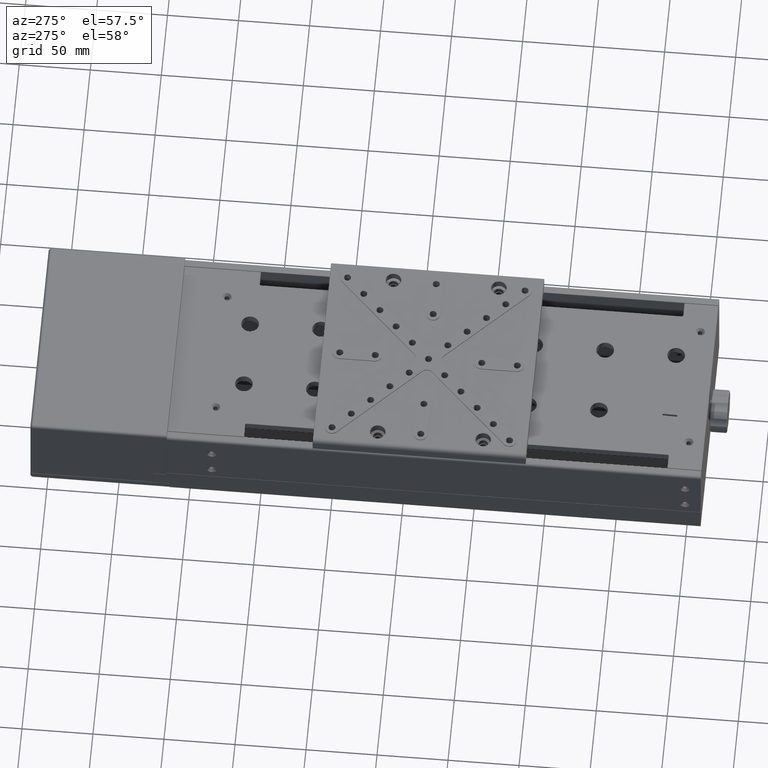
[diagram: clean part render]
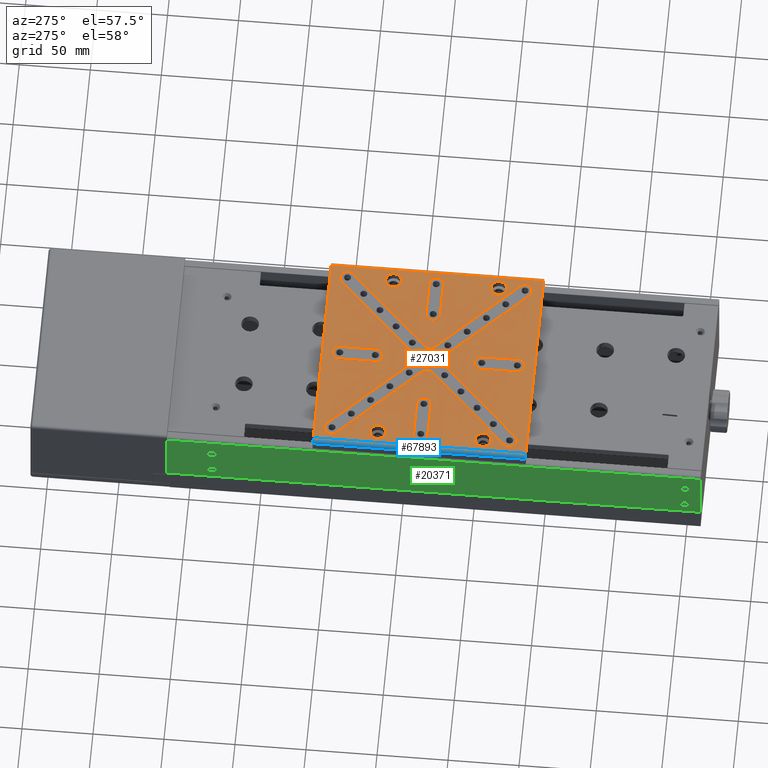
[diagram: same view with three faces highlighted in distinct colors, each labeled with its STEP entity id]
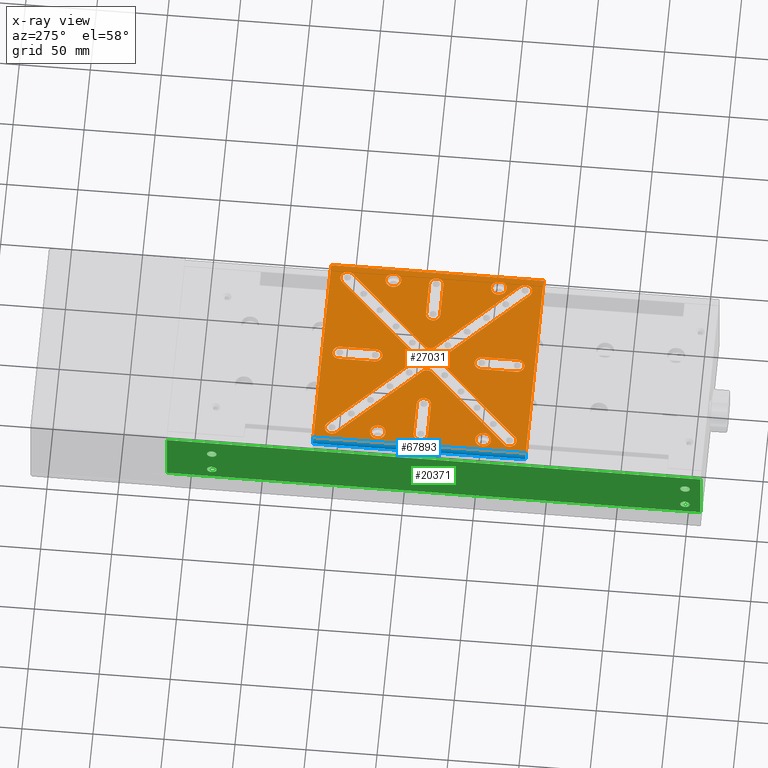
[diagram: x-ray of the same camera — body ghosted, the three highlighted faces saturated]
A machine part, auxiliary view with three faces highlighted in distinct colors.
The next image is the same camera in x-ray (body ghosted, the three faces saturated) — at least one of them is partly hidden behind the body in this view.
Their STEP definitions:

[orange] entity #27031 — the highlighted planar face has unit normal (0, -0, 1).
#61 = AXIS2_PLACEMENT_3D ( 'NONE', #50183, #50579, #26851 ) ;
#140 = VERTEX_POINT ( 'NONE', #46376 ) ;
#239 = LINE ( 'NONE', #42867, #42869 ) ;
#280 = CARTESIAN_POINT ( 'NONE',  ( -59.97883058508269727, 91.74845258666289283, 51.54665025355550512 ) ) ;
#297 = EDGE_CURVE ( 'NONE', #43103, #54788, #58184, .T. ) ;
#422 = CARTESIAN_POINT ( 'NONE',  ( -145.5854323028810029, 93.21291868073019771, 51.54665025355550512 ) ) ;
#516 = DIRECTION ( 'NONE',  ( 8.668995986095240018E-19, 0.000000000000000000, 1.000000000000000000 ) ) ;
#542 = DIRECTION ( 'NONE',  ( 0.000000000000000000, 1.000000000000000000, 0.000000000000000000 ) ) ;
#576 = VERTEX_POINT ( 'NONE', #47080 ) ;
#586 = CARTESIAN_POINT ( 'NONE',  ( -7.285432302880869848, 123.9129186807300158, 51.54665025355550512 ) ) ;
#605 = DIRECTION ( 'NONE',  ( 3.469446951953611231E-16, 1.000000000000000000, 0.000000000000000000 ) ) ;
#634 = CIRCLE ( 'NONE', #22433, 5.000000000000004441 ) ;
#962 = VERTEX_POINT ( 'NONE', #30398 ) ;
#1108 = AXIS2_PLACEMENT_3D ( 'NONE', #77739, #41095, #53992 ) ;
#1182 = CIRCLE ( 'NONE', #46109, 5.500000000000005329 ) ;
#1183 = CARTESIAN_POINT ( 'NONE',  ( -70.58543230288080395, 125.7129186807300130, 51.54665025355550512 ) ) ;
#1240 = ORIENTED_EDGE ( 'NONE', *, *, #20533, .F. ) ;
#2004 = AXIS2_PLACEMENT_3D ( 'NONE', #62480, #7345, #25850 ) ;
#2636 = CARTESIAN_POINT ( 'NONE',  ( -136.6209662088135985, 147.1773847747973889, 51.54665025355550512 ) ) ;
#2711 = DIRECTION ( 'NONE',  ( 8.668995986095240018E-19, 0.000000000000000000, 1.000000000000000000 ) ) ;
#3069 = AXIS2_PLACEMENT_3D ( 'NONE', #76631, #3423, #46419 ) ;
#3336 = ORIENTED_EDGE ( 'NONE', *, *, #15711, .T. ) ;
#3423 = DIRECTION ( 'NONE',  ( 8.668995986095240018E-19, 0.000000000000000000, 1.000000000000000000 ) ) ;
#3738 = DIRECTION ( 'NONE',  ( -8.668995986095240018E-19, 2.734238336405115197E-34, -1.000000000000000000 ) ) ;
#3763 = CARTESIAN_POINT ( 'NONE',  ( -65.58543230288080395, 125.7129186807300130, 51.54665025355550512 ) ) ;
#3880 = DIRECTION ( 'NONE',  ( 0.000000000000000000, 1.000000000000000000, 0.000000000000000000 ) ) ;
#3905 = ORIENTED_EDGE ( 'NONE', *, *, #5218, .T. ) ;
#3918 = VECTOR ( 'NONE', #42736, 1000.000000000000000 ) ;
#4113 = CIRCLE ( 'NONE', #46468, 5.000000000000004441 ) ;
#4141 = ORIENTED_EDGE ( 'NONE', *, *, #62560, .T. ) ;
#4306 = VECTOR ( 'NONE', #15430, 1000.000000000000114 ) ;
#4322 = DIRECTION ( 'NONE',  ( 8.668995986095240018E-19, 0.000000000000000000, 1.000000000000000000 ) ) ;
#4357 = DIRECTION ( 'NONE',  ( 3.469446951953613696E-16, 1.000000000000000000, 0.000000000000000000 ) ) ;
#4607 = CARTESIAN_POINT ( 'NONE',  ( -65.58543230288090342, 13.21291868073011955, 51.54665025355550512 ) ) ;
#4707 = ORIENTED_EDGE ( 'NONE', *, *, #8505, .T. ) ;
#5095 = CIRCLE ( 'NONE', #42336, 5.000000000000004441 ) ;
#5178 = AXIS2_PLACEMENT_3D ( 'NONE', #20017, #2711, #7554 ) ;
#5218 = EDGE_CURVE ( 'NONE', #43180, #74961, #30052, .T. ) ;
#5371 = LINE ( 'NONE', #17013, #63692 ) ;
#5651 = CARTESIAN_POINT ( 'NONE',  ( -65.58543230288090342, 50.71291868073009823, 51.54665025355550512 ) ) ;
#5653 = AXIS2_PLACEMENT_3D ( 'NONE', #10733, #53405, #54605 ) ;
#5794 = AXIS2_PLACEMENT_3D ( 'NONE', #65109, #72346, #73155 ) ;
#6085 = ORIENTED_EDGE ( 'NONE', *, *, #34741, .T. ) ;
#6106 = VERTEX_POINT ( 'NONE', #76032 ) ;
#6220 = DIRECTION ( 'NONE',  ( 8.668995986095240018E-19, -3.007662170045604907E-34, 1.000000000000000000 ) ) ;
#6334 = VERTEX_POINT ( 'NONE', #13886 ) ;
#6391 = ORIENTED_EDGE ( 'NONE', *, *, #39156, .T. ) ;
#7157 = FACE_OUTER_BOUND ( 'NONE', #9487, .T. ) ;
#7345 = DIRECTION ( 'NONE',  ( -8.668995986095240018E-19, 2.734238336405115197E-34, -1.000000000000000000 ) ) ;
#7402 = CARTESIAN_POINT ( 'NONE',  ( -142.0498983969482083, 9.677384774797499034, 51.54665025355550512 ) ) ;
#7554 = DIRECTION ( 'NONE',  ( 0.000000000000000000, 1.000000000000000000, 0.000000000000000000 ) ) ;
#7760 = VERTEX_POINT ( 'NONE', #28903 ) ;
#8085 = VECTOR ( 'NONE', #9475, 1000.000000000000000 ) ;
#8171 = EDGE_LOOP ( 'NONE', ( #9034, #47365, #49603, #50100 ) ) ;
#8225 = DIRECTION ( 'NONE',  ( 8.668995986095240018E-19, 0.000000000000000000, 1.000000000000000000 ) ) ;
#8270 = VERTEX_POINT ( 'NONE', #40852 ) ;
#8343 = DIRECTION ( 'NONE',  ( 0.000000000000000000, 1.000000000000000000, 0.000000000000000000 ) ) ;
#8363 = ORIENTED_EDGE ( 'NONE', *, *, #30836, .F. ) ;
#8378 = EDGE_CURVE ( 'NONE', #7760, #43180, #36429, .T. ) ;
#8406 = VECTOR ( 'NONE', #64147, 1000.000000000000114 ) ;
#8429 = DIRECTION ( 'NONE',  ( 8.668995986095240018E-19, 0.000000000000000000, 1.000000000000000000 ) ) ;
#8505 = EDGE_CURVE ( 'NONE', #62380, #74159, #14243, .T. ) ;
#8525 = ORIENTED_EDGE ( 'NONE', *, *, #27009, .T. ) ;
#8603 = CARTESIAN_POINT ( 'NONE',  ( -142.5854323028808039, 163.0129186807299959, 51.54665025355550512 ) ) ;
#9034 = ORIENTED_EDGE ( 'NONE', *, *, #67549, .F. ) ;
#9173 = DIRECTION ( 'NONE',  ( 8.668995986095240018E-19, -3.007662170045634842E-34, 1.000000000000000000 ) ) ;
#9203 = CARTESIAN_POINT ( 'NONE',  ( -70.58543230288080395, 50.71291868073009823, 51.54665025355550512 ) ) ;
#9475 = DIRECTION ( 'NONE',  ( 3.885780586188049864E-16, 1.000000000000000000, 1.362391624965246078E-20 ) ) ;
#9487 = EDGE_LOOP ( 'NONE', ( #6085, #79422, #44446, #76683 ) ) ;
#9602 = CIRCLE ( 'NONE', #5794, 5.000000000000004441 ) ;
#9632 = CARTESIAN_POINT ( 'NONE',  ( -129.5498983969481799, 22.17738477479750259, 51.54665025355550512 ) ) ;
#9775 = VECTOR ( 'NONE', #49296, 1000.000000000000114 ) ;
#10207 = DIRECTION ( 'NONE',  ( 3.885780586188049864E-16, 1.000000000000000000, 1.362391624965246078E-20 ) ) ;
#10733 = CARTESIAN_POINT ( 'NONE',  ( -133.8854323028808153, 118.4129186807302005, 51.54665025355550512 ) ) ;
#10873 = VECTOR ( 'NONE', #66008, 1000.000000000000114 ) ;
#11125 = ORIENTED_EDGE ( 'NONE', *, *, #12563, .T. ) ;
#11132 = CARTESIAN_POINT ( 'NONE',  ( -108.0854323028808182, 88.21291868073009823, 51.54665025355550512 ) ) ;
#11253 = ORIENTED_EDGE ( 'NONE', *, *, #32360, .F. ) ;
#11405 = DIRECTION ( 'NONE',  ( -8.668995986095240018E-19, 0.000000000000000000, -1.000000000000000000 ) ) ;
#11671 = CARTESIAN_POINT ( 'NONE',  ( -74.12096620881359854, 84.67738477479740311, 51.54665025355550512 ) ) ;
#12440 = EDGE_CURVE ( 'NONE', #962, #13564, #49306, .T. ) ;
#12563 = EDGE_CURVE ( 'NONE', #24933, #56872, #76219, .T. ) ;
#12588 = AXIS2_PLACEMENT_3D ( 'NONE', #53911, #36186, #12833 ) ;
#12833 = DIRECTION ( 'NONE',  ( 3.469446951953611231E-16, 1.000000000000000000, 0.000000000000000000 ) ) ;
#13008 = LINE ( 'NONE', #24327, #72084 ) ;
#13180 = AXIS2_PLACEMENT_3D ( 'NONE', #55235, #72544, #17406 ) ;
#13296 = CARTESIAN_POINT ( 'NONE',  ( -142.5854323028810029, 13.41291868073016147, 51.54665025355550512 ) ) ;
#13562 = FACE_BOUND ( 'NONE', #55797, .T. ) ;
#13564 = VERTEX_POINT ( 'NONE', #34550 ) ;
#13588 = VECTOR ( 'NONE', #17928, 1000.000000000000000 ) ;
#13614 = VECTOR ( 'NONE', #54948, 1000.000000000000114 ) ;
#13750 = ORIENTED_EDGE ( 'NONE', *, *, #58264, .F. ) ;
#13861 = DIRECTION ( 'NONE',  ( 0.000000000000000000, 1.000000000000000000, 0.000000000000000000 ) ) ;
#13886 = CARTESIAN_POINT ( 'NONE',  ( -65.58543230288080395, 150.7129186807300130, 51.54665025355550512 ) ) ;
#13997 = EDGE_CURVE ( 'NONE', #66401, #73585, #33093, .T. ) ;
#14243 = LINE ( 'NONE', #74246, #9775 ) ;
#14257 = CARTESIAN_POINT ( 'NONE',  ( -149.1209662088135985, 16.74845258666294967, 51.54665025355550512 ) ) ;
#14350 = FACE_BOUND ( 'NONE', #65892, .T. ) ;
#14450 = VERTEX_POINT ( 'NONE', #22067 ) ;
#14511 = CARTESIAN_POINT ( 'NONE',  ( -75.58543230288081816, 125.7129186807300130, 51.54665025355550512 ) ) ;
#14910 = DIRECTION ( 'NONE',  ( 0.000000000000000000, 1.000000000000000000, 0.000000000000000000 ) ) ;
#15283 = EDGE_CURVE ( 'NONE', #54788, #43103, #1182, .T. ) ;
#15430 = DIRECTION ( 'NONE',  ( -0.7071067811865474617, 0.7071067811865474617, 6.226241483511374579E-19 ) ) ;
#15599 = CARTESIAN_POINT ( 'NONE',  ( -8.085432302880951383, 25.71291868073019771, 51.54665025355550512 ) ) ;
#15662 = LINE ( 'NONE', #7402, #19766 ) ;
#15680 = EDGE_CURVE ( 'NONE', #6106, #21140, #26903, .T. ) ;
#15711 = EDGE_CURVE ( 'NONE', #65237, #44100, #5095, .T. ) ;
#16238 = DIRECTION ( 'NONE',  ( 0.000000000000000000, 1.000000000000000000, 0.000000000000000000 ) ) ;
#16368 = AXIS2_PLACEMENT_3D ( 'NONE', #25873, #38332, #56852 ) ;
#16581 = VERTEX_POINT ( 'NONE', #78905 ) ;
#16582 = CARTESIAN_POINT ( 'NONE',  ( -70.58543230288090342, 150.7129186807300130, 51.54665025355550512 ) ) ;
#16589 = CARTESIAN_POINT ( 'NONE',  ( -145.5854323028810029, 83.21291868073011244, 51.54665025355550512 ) ) ;
#16724 = VECTOR ( 'NONE', #40935, 1000.000000000000000 ) ;
#17013 = CARTESIAN_POINT ( 'NONE',  ( -65.58543230288080395, 13.21291868073011955, 51.54665025355550512 ) ) ;
#17123 = AXIS2_PLACEMENT_3D ( 'NONE', #40415, #64561, #58149 ) ;
#17206 = DIRECTION ( 'NONE',  ( 3.154042683594191669E-16, 1.000000000000000000, 0.000000000000000000 ) ) ;
#17271 = EDGE_CURVE ( 'NONE', #962, #32060, #4113, .T. ) ;
#17406 = DIRECTION ( 'NONE',  ( 3.154042683594191669E-16, 1.000000000000000000, 0.000000000000000000 ) ) ;
#17643 = DIRECTION ( 'NONE',  ( 0.000000000000000000, 1.000000000000000000, 0.000000000000000000 ) ) ;
#17928 = DIRECTION ( 'NONE',  ( 1.000000000000000000, -2.661133787040694931E-16, -8.668995986095240018E-19 ) ) ;
#18147 = DIRECTION ( 'NONE',  ( 3.885780586188049864E-16, 1.000000000000000000, 1.362391624965246078E-20 ) ) ;
#18210 = CARTESIAN_POINT ( 'NONE',  ( -142.5854323028810029, 13.21291868073016040, 51.54665025355550512 ) ) ;
#18287 = CARTESIAN_POINT ( 'NONE',  ( -75.58543230288090342, 25.71291868073024744, 51.54665025355550512 ) ) ;
#18455 = VERTEX_POINT ( 'NONE', #65402 ) ;
#18707 = CIRCLE ( 'NONE', #2004, 5.499999999999998224 ) ;
#18746 = DIRECTION ( 'NONE',  ( 0.7071067811865480168, 0.7071067811865470176, -6.033570212182439695E-19 ) ) ;
#18762 = VECTOR ( 'NONE', #24972, 1000.000000000000000 ) ;
#18808 = EDGE_CURVE ( 'NONE', #73585, #63993, #74916, .T. ) ;
#18880 = CARTESIAN_POINT ( 'NONE',  ( -75.58543230288090342, 50.71291868073009823, 51.54665025355550512 ) ) ;
#19193 = EDGE_CURVE ( 'NONE', #44085, #32784, #22309, .T. ) ;
#19220 = FACE_BOUND ( 'NONE', #66971, .T. ) ;
#19766 = VECTOR ( 'NONE', #56488, 1000.000000000000000 ) ;
#19825 = CIRCLE ( 'NONE', #5653, 5.500000000000005329 ) ;
#20017 = CARTESIAN_POINT ( 'NONE',  ( -70.58543230288090342, 74.07078305699920406, 51.54665025355550512 ) ) ;
#20024 = CARTESIAN_POINT ( 'NONE',  ( -133.0854323028810029, 25.71291868073024744, 51.54665025355550512 ) ) ;
#20068 = DIRECTION ( 'NONE',  ( 0.000000000000000000, 1.000000000000000000, 0.000000000000000000 ) ) ;
#20115 = VERTEX_POINT ( 'NONE', #18287 ) ;
#20172 = EDGE_CURVE ( 'NONE', #140, #46082, #36508, .T. ) ;
#20307 = DIRECTION ( 'NONE',  ( 0.000000000000000000, 1.000000000000000000, 0.000000000000000000 ) ) ;
#20413 = FACE_BOUND ( 'NONE', #74839, .T. ) ;
#20418 = DIRECTION ( 'NONE',  ( 8.668995986095240018E-19, 0.000000000000000000, 1.000000000000000000 ) ) ;
#20533 = EDGE_CURVE ( 'NONE', #67633, #8270, #78978, .T. ) ;
#21074 = DIRECTION ( 'NONE',  ( 1.000000000000000000, -3.885780586188049864E-16, -8.668995986095240018E-19 ) ) ;
#21140 = VERTEX_POINT ( 'NONE', #18880 ) ;
#21977 = CARTESIAN_POINT ( 'NONE',  ( 1.414567697119174072, 163.0129186807299959, 51.54665025355550512 ) ) ;
#22048 = VERTEX_POINT ( 'NONE', #14511 ) ;
#22067 = CARTESIAN_POINT ( 'NONE',  ( -133.8854323028809858, 49.71291868073010534, 51.54665025355550512 ) ) ;
#22309 = CIRCLE ( 'NONE', #55758, 5.499999999999998224 ) ;
#22433 = AXIS2_PLACEMENT_3D ( 'NONE', #49667, #75392, #605 ) ;
#22463 = CARTESIAN_POINT ( 'NONE',  ( -142.5854323028808039, 163.0129186807299959, 51.54665025355550512 ) ) ;
#22778 = EDGE_LOOP ( 'NONE', ( #69645, #27138 ) ) ;
#23475 = DIRECTION ( 'NONE',  ( 8.668995986095240018E-19, 0.000000000000000000, 1.000000000000000000 ) ) ;
#24212 = LINE ( 'NONE', #79331, #67201 ) ;
#24303 = LINE ( 'NONE', #4607, #26532 ) ;
#24327 = CARTESIAN_POINT ( 'NONE',  ( -75.58543230288090342, 13.21291868073011955, 51.54665025355550512 ) ) ;
#24886 = CARTESIAN_POINT ( 'NONE',  ( -70.58543230288090342, 102.3550543044609924, 51.54665025355550512 ) ) ;
#24933 = VERTEX_POINT ( 'NONE', #37103 ) ;
#24972 = DIRECTION ( 'NONE',  ( 1.000000000000000000, -3.885780586188049864E-16, -8.668995986095240018E-19 ) ) ;
#25509 = CIRCLE ( 'NONE', #1108, 5.499999999999998224 ) ;
#25517 = AXIS2_PLACEMENT_3D ( 'NONE', #24886, #79219, #17643 ) ;
#25559 = DIRECTION ( 'NONE',  ( 0.000000000000000000, 1.000000000000000000, 0.000000000000000000 ) ) ;
#25594 = CIRCLE ( 'NONE', #65427, 5.500000000000005329 ) ;
#25842 = CIRCLE ( 'NONE', #70791, 4.999999999999997335 ) ;
#25850 = DIRECTION ( 'NONE',  ( 3.154042683594195614E-16, 1.000000000000000000, 0.000000000000000000 ) ) ;
#25873 = CARTESIAN_POINT ( 'NONE',  ( -133.0854323028810029, 150.7129186807300130, 51.54665025355550512 ) ) ;
#26054 = FACE_BOUND ( 'NONE', #8171, .T. ) ;
#26219 = CARTESIAN_POINT ( 'NONE',  ( -133.8854323028808153, 118.4129186807302005, 51.54665025355550512 ) ) ;
#26462 = CARTESIAN_POINT ( 'NONE',  ( -133.8854323028808153, 123.9129186807300158, 51.54665025355550512 ) ) ;
#26532 = VECTOR ( 'NONE', #10207, 1000.000000000000000 ) ;
#26654 = CIRCLE ( 'NONE', #30498, 5.000000000000000888 ) ;
#26851 = DIRECTION ( 'NONE',  ( 1.000000000000000000, 0.000000000000000000, -8.668995986095240018E-19 ) ) ;
#26903 = CIRCLE ( 'NONE', #30758, 4.999999999999997335 ) ;
#26904 = DIRECTION ( 'NONE',  ( 8.668995986095240018E-19, 0.000000000000000000, 1.000000000000000000 ) ) ;
#26978 = EDGE_CURVE ( 'NONE', #16581, #66401, #32090, .T. ) ;
#27009 = EDGE_CURVE ( 'NONE', #74961, #46323, #50125, .T. ) ;
#27022 = CARTESIAN_POINT ( 'NONE',  ( -65.58543230288090342, 25.71291868073024744, 51.54665025355550512 ) ) ;
#27031 = ADVANCED_FACE ( 'NONE', ( #57033, #19220, #13562, #56643, #75528, #56253, #26054, #20413, #14350, #7157 ), #39289, .T. ) ;
#27138 = ORIENTED_EDGE ( 'NONE', *, *, #68345, .T. ) ;
#27585 = CARTESIAN_POINT ( 'NONE',  ( -129.5498983969481799, 154.2484525866630065, 51.54665025355550512 ) ) ;
#27894 = EDGE_CURVE ( 'NONE', #45705, #6106, #25842, .T. ) ;
#28071 = EDGE_CURVE ( 'NONE', #16581, #24933, #62783, .T. ) ;
#28672 = DIRECTION ( 'NONE',  ( 8.668995986095240018E-19, 0.000000000000000000, 1.000000000000000000 ) ) ;
#28903 = CARTESIAN_POINT ( 'NONE',  ( -11.62096620881365894, 22.17738477479744930, 51.54665025355550512 ) ) ;
#29103 = AXIS2_PLACEMENT_3D ( 'NONE', #11132, #4322, #48940 ) ;
#29430 = VERTEX_POINT ( 'NONE', #3763 ) ;
#29494 = CARTESIAN_POINT ( 'NONE',  ( -133.0854323028810029, 155.7129186807300130, 51.54665025355550512 ) ) ;
#29749 = AXIS2_PLACEMENT_3D ( 'NONE', #1183, #26904, #20068 ) ;
#29865 = CARTESIAN_POINT ( 'NONE',  ( -81.19203402067908826, 84.67738477479750259, 51.54665025355550512 ) ) ;
#30052 = CIRCLE ( 'NONE', #3069, 5.000000000000004441 ) ;
#30398 = CARTESIAN_POINT ( 'NONE',  ( -33.08543230288085368, 93.21291868073009823, 51.54665025355550512 ) ) ;
#30447 = AXIS2_PLACEMENT_3D ( 'NONE', #15599, #9173, #4357 ) ;
#30498 = AXIS2_PLACEMENT_3D ( 'NONE', #20024, #20418, #8343 ) ;
#30758 = AXIS2_PLACEMENT_3D ( 'NONE', #44822, #50076, #20307 ) ;
#30836 = EDGE_CURVE ( 'NONE', #20115, #45407, #79371, .T. ) ;
#31524 = ORIENTED_EDGE ( 'NONE', *, *, #28071, .T. ) ;
#31543 = DIRECTION ( 'NONE',  ( 3.469446951953611231E-16, 1.000000000000000000, 0.000000000000000000 ) ) ;
#31731 = CARTESIAN_POINT ( 'NONE',  ( -8.085432302880919408, 155.7129186807300130, 51.54665025355550512 ) ) ;
#31987 = DIRECTION ( 'NONE',  ( 8.668995986095240018E-19, 0.000000000000000000, 1.000000000000000000 ) ) ;
#32060 = VERTEX_POINT ( 'NONE', #42459 ) ;
#32090 = LINE ( 'NONE', #38899, #77126 ) ;
#32256 = EDGE_CURVE ( 'NONE', #6334, #67633, #47925, .T. ) ;
#32360 = EDGE_CURVE ( 'NONE', #58859, #44100, #64140, .T. ) ;
#32516 = ORIENTED_EDGE ( 'NONE', *, *, #62628, .F. ) ;
#32572 = ORIENTED_EDGE ( 'NONE', *, *, #15283, .T. ) ;
#32784 = VERTEX_POINT ( 'NONE', #39647 ) ;
#33093 = CIRCLE ( 'NONE', #16368, 5.000000000000004441 ) ;
#33135 = CARTESIAN_POINT ( 'NONE',  ( -145.5854323028810029, 83.21291868073011244, 51.54665025355550512 ) ) ;
#33157 = CARTESIAN_POINT ( 'NONE',  ( -67.04989839694809461, 91.74845258666289283, 51.54665025355550512 ) ) ;
#34204 = AXIS2_PLACEMENT_3D ( 'NONE', #65734, #11405, #16238 ) ;
#34265 = CIRCLE ( 'NONE', #30447, 5.000000000000000888 ) ;
#34550 = CARTESIAN_POINT ( 'NONE',  ( -8.085432302880919408, 93.21291868073009823, 51.54665025355550512 ) ) ;
#34741 = EDGE_CURVE ( 'NONE', #75535, #66021, #73346, .T. ) ;
#34809 = CARTESIAN_POINT ( 'NONE',  ( -11.62096620881365894, 154.2484525866630065, 51.54665025355550512 ) ) ;
#34865 = DIRECTION ( 'NONE',  ( 3.885780586188049864E-16, 1.000000000000000000, 1.362391624965246078E-20 ) ) ;
#35037 = VERTEX_POINT ( 'NONE', #58995 ) ;
#35655 = ORIENTED_EDGE ( 'NONE', *, *, #72420, .F. ) ;
#36186 = DIRECTION ( 'NONE',  ( 8.668995986095240018E-19, -3.007662170045619874E-34, 1.000000000000000000 ) ) ;
#36429 = LINE ( 'NONE', #66220, #13614 ) ;
#36508 = CIRCLE ( 'NONE', #45503, 5.000000000000004441 ) ;
#36834 = ORIENTED_EDGE ( 'NONE', *, *, #27894, .F. ) ;
#36926 = ORIENTED_EDGE ( 'NONE', *, *, #40077, .F. ) ;
#37103 = CARTESIAN_POINT ( 'NONE',  ( -67.04989839694819409, 98.81952039852839675, 51.54665025355550512 ) ) ;
#37464 = ORIENTED_EDGE ( 'NONE', *, *, #15680, .F. ) ;
#37915 = EDGE_CURVE ( 'NONE', #43188, #63993, #60769, .T. ) ;
#38273 = EDGE_CURVE ( 'NONE', #74159, #43188, #9602, .T. ) ;
#38332 = DIRECTION ( 'NONE',  ( 8.668995986095240018E-19, 0.000000000000000000, 1.000000000000000000 ) ) ;
#38882 = EDGE_CURVE ( 'NONE', #32784, #44085, #18707, .T. ) ;
#38899 = CARTESIAN_POINT ( 'NONE',  ( -67.04989839694809461, 91.74845258666289283, 51.54665025355550512 ) ) ;
#39156 = EDGE_CURVE ( 'NONE', #140, #18455, #78504, .T. ) ;
#39289 = PLANE ( 'NONE',  #61 ) ;
#39446 = DIRECTION ( 'NONE',  ( -8.668995986095240018E-19, 0.000000000000000000, -1.000000000000000000 ) ) ;
#39647 = CARTESIAN_POINT ( 'NONE',  ( -7.285432302880900934, 49.71291868073010534, 51.54665025355550512 ) ) ;
#40077 = EDGE_CURVE ( 'NONE', #65237, #67513, #239, .T. ) ;
#40415 = CARTESIAN_POINT ( 'NONE',  ( -133.0854323028810029, 150.7129186807300130, 51.54665025355550512 ) ) ;
#40852 = CARTESIAN_POINT ( 'NONE',  ( -75.58543230288081816, 150.7129186807300130, 51.54665025355550512 ) ) ;
#40935 = DIRECTION ( 'NONE',  ( -1.000000000000000000, 3.885780586188049864E-16, 8.668995986095240018E-19 ) ) ;
#41095 = DIRECTION ( 'NONE',  ( -8.668995986095240018E-19, 0.000000000000000000, -1.000000000000000000 ) ) ;
#41126 = DIRECTION ( 'NONE',  ( 1.000000000000000000, -3.885780586188049864E-16, -8.668995986095240018E-19 ) ) ;
#41214 = CARTESIAN_POINT ( 'NONE',  ( -133.0854323028810029, 88.21291868073009823, 51.54665025355550512 ) ) ;
#41948 = CIRCLE ( 'NONE', #29103, 5.000000000000004441 ) ;
#42166 = EDGE_CURVE ( 'NONE', #71392, #56872, #634, .T. ) ;
#42319 = CARTESIAN_POINT ( 'NONE',  ( -59.97883058508269727, 84.67738477479750259, 51.54665025355550512 ) ) ;
#42336 = AXIS2_PLACEMENT_3D ( 'NONE', #63353, #8225, #25559 ) ;
#42459 = CARTESIAN_POINT ( 'NONE',  ( -33.08543230288085368, 83.21291868073011244, 51.54665025355550512 ) ) ;
#42603 = CARTESIAN_POINT ( 'NONE',  ( -4.549898396948190538, 147.1773847747973889, 51.54665025355550512 ) ) ;
#42725 = VECTOR ( 'NONE', #21074, 1000.000000000000000 ) ;
#42736 = DIRECTION ( 'NONE',  ( -3.885780586188049864E-16, -1.000000000000000000, -1.362391624965246078E-20 ) ) ;
#42756 = CARTESIAN_POINT ( 'NONE',  ( -33.08543230288080395, 88.21291868073009823, 51.54665025355550512 ) ) ;
#42854 = CARTESIAN_POINT ( 'NONE',  ( -70.58543230288090342, 150.7129186807300130, 51.54665025355550512 ) ) ;
#42867 = CARTESIAN_POINT ( 'NONE',  ( -142.0498983969482083, 9.677384774797499034, 51.54665025355550512 ) ) ;
#42869 = VECTOR ( 'NONE', #18746, 1000.000000000000000 ) ;
#43103 = VERTEX_POINT ( 'NONE', #72717 ) ;
#43180 = VERTEX_POINT ( 'NONE', #65474 ) ;
#43188 = VERTEX_POINT ( 'NONE', #53409 ) ;
#44059 = ORIENTED_EDGE ( 'NONE', *, *, #13997, .F. ) ;
#44085 = VERTEX_POINT ( 'NONE', #48367 ) ;
#44100 = VERTEX_POINT ( 'NONE', #42319 ) ;
#44446 = ORIENTED_EDGE ( 'NONE', *, *, #74028, .T. ) ;
#44535 = DIRECTION ( 'NONE',  ( -0.7071067811865474617, 0.7071067811865474617, 6.226241483511374579E-19 ) ) ;
#44747 = ORIENTED_EDGE ( 'NONE', *, *, #57357, .F. ) ;
#44822 = CARTESIAN_POINT ( 'NONE',  ( -70.58543230288080395, 50.71291868073009823, 51.54665025355550512 ) ) ;
#45213 = ORIENTED_EDGE ( 'NONE', *, *, #26978, .F. ) ;
#45407 = VERTEX_POINT ( 'NONE', #27022 ) ;
#45503 = AXIS2_PLACEMENT_3D ( 'NONE', #41214, #66986, #72215 ) ;
#45596 = LINE ( 'NONE', #33135, #42725 ) ;
#45705 = VERTEX_POINT ( 'NONE', #5651 ) ;
#46034 = EDGE_CURVE ( 'NONE', #76348, #75535, #77581, .T. ) ;
#46082 = VERTEX_POINT ( 'NONE', #60660 ) ;
#46109 = AXIS2_PLACEMENT_3D ( 'NONE', #78390, #72339, #17206 ) ;
#46267 = ORIENTED_EDGE ( 'NONE', *, *, #70465, .T. ) ;
#46323 = VERTEX_POINT ( 'NONE', #58883 ) ;
#46376 = CARTESIAN_POINT ( 'NONE',  ( -133.0854323028810029, 93.21291868073019771, 51.54665025355550512 ) ) ;
#46419 = DIRECTION ( 'NONE',  ( 0.000000000000000000, 1.000000000000000000, 0.000000000000000000 ) ) ;
#46468 = AXIS2_PLACEMENT_3D ( 'NONE', #42756, #23475, #73366 ) ;
#46728 = AXIS2_PLACEMENT_3D ( 'NONE', #49243, #6220, #31543 ) ;
#47080 = CARTESIAN_POINT ( 'NONE',  ( 1.414567697119118117, 13.41291868073012061, 51.54665025355550512 ) ) ;
#47365 = ORIENTED_EDGE ( 'NONE', *, *, #68180, .F. ) ;
#47881 = ORIENTED_EDGE ( 'NONE', *, *, #8378, .T. ) ;
#47925 = CIRCLE ( 'NONE', #56980, 5.000000000000004441 ) ;
#47930 = ORIENTED_EDGE ( 'NONE', *, *, #64517, .T. ) ;
#47994 = DIRECTION ( 'NONE',  ( 3.885780586188049864E-16, 1.000000000000000000, 1.362391624965246078E-20 ) ) ;
#48006 = CIRCLE ( 'NONE', #46728, 5.000000000000004441 ) ;
#48367 = CARTESIAN_POINT ( 'NONE',  ( -7.285432302880900934, 38.71291868073010534, 51.54665025355550512 ) ) ;
#48940 = DIRECTION ( 'NONE',  ( 0.000000000000000000, 1.000000000000000000, 0.000000000000000000 ) ) ;
#49243 = CARTESIAN_POINT ( 'NONE',  ( -8.085432302880919408, 150.7129186807300130, 51.54665025355550512 ) ) ;
#49296 = DIRECTION ( 'NONE',  ( 0.7071067811865474617, 0.7071067811865474617, -6.033570212182434880E-19 ) ) ;
#49306 = LINE ( 'NONE', #73864, #67573 ) ;
#49603 = ORIENTED_EDGE ( 'NONE', *, *, #17271, .F. ) ;
#49667 = CARTESIAN_POINT ( 'NONE',  ( -8.085432302880919408, 150.7129186807300130, 51.54665025355550512 ) ) ;
#49735 = ORIENTED_EDGE ( 'NONE', *, *, #20172, .F. ) ;
#49794 = VERTEX_POINT ( 'NONE', #9632 ) ;
#50076 = DIRECTION ( 'NONE',  ( 8.668995986095240018E-19, 0.000000000000000000, 1.000000000000000000 ) ) ;
#50100 = ORIENTED_EDGE ( 'NONE', *, *, #12440, .T. ) ;
#50125 = CIRCLE ( 'NONE', #5178, 5.000000000000004441 ) ;
#50183 = CARTESIAN_POINT ( 'NONE',  ( -145.5854323028810029, 13.21291868073016040, 51.54665025355550512 ) ) ;
#50579 = DIRECTION ( 'NONE',  ( 8.668995986095240018E-19, -1.362391624965280082E-20, 1.000000000000000000 ) ) ;
#50778 = ORIENTED_EDGE ( 'NONE', *, *, #37915, .T. ) ;
#50960 = CARTESIAN_POINT ( 'NONE',  ( -70.58543230288090342, 79.07078305699920406, 51.54665025355550512 ) ) ;
#51053 = EDGE_CURVE ( 'NONE', #61892, #65997, #19825, .T. ) ;
#51448 = EDGE_LOOP ( 'NONE', ( #58572, #52596, #35655, #66446, #1240 ) ) ;
#52596 = ORIENTED_EDGE ( 'NONE', *, *, #76786, .F. ) ;
#53405 = DIRECTION ( 'NONE',  ( -8.668995986095240018E-19, 0.000000000000000000, -1.000000000000000000 ) ) ;
#53409 = CARTESIAN_POINT ( 'NONE',  ( -81.19203402067908826, 91.74845258666289283, 51.54665025355550512 ) ) ;
#53457 = CARTESIAN_POINT ( 'NONE',  ( -133.8854323028809858, 38.71291868073015507, 51.54665025355550512 ) ) ;
#53911 = CARTESIAN_POINT ( 'NONE',  ( -8.085432302880919408, 88.21291868073009823, 51.54665025355550512 ) ) ;
#53992 = DIRECTION ( 'NONE',  ( 0.000000000000000000, 1.000000000000000000, 0.000000000000000000 ) ) ;
#54094 = EDGE_CURVE ( 'NONE', #73609, #18455, #41948, .T. ) ;
#54202 = CARTESIAN_POINT ( 'NONE',  ( -4.549898396948219848, 29.24845258666295322, 51.54665025355550512 ) ) ;
#54413 = DIRECTION ( 'NONE',  ( 0.000000000000000000, 1.000000000000000000, 0.000000000000000000 ) ) ;
#54570 = AXIS2_PLACEMENT_3D ( 'NONE', #16582, #28672, #54413 ) ;
#54605 = DIRECTION ( 'NONE',  ( 0.000000000000000000, 1.000000000000000000, 0.000000000000000000 ) ) ;
#54788 = VERTEX_POINT ( 'NONE', #586 ) ;
#54948 = DIRECTION ( 'NONE',  ( -0.7071067811865474617, 0.7071067811865474617, 6.226241483511374579E-19 ) ) ;
#55105 = VECTOR ( 'NONE', #41126, 1000.000000000000000 ) ;
#55235 = CARTESIAN_POINT ( 'NONE',  ( -7.285432302880869848, 118.4129186807300016, 51.54665025355550512 ) ) ;
#55758 = AXIS2_PLACEMENT_3D ( 'NONE', #70900, #3738, #63699 ) ;
#55797 = EDGE_LOOP ( 'NONE', ( #36926, #3336, #11253, #71189, #47881, #3905, #8525, #13750, #67964, #4707, #65379, #50778, #78563, #44059, #45213, #31524, #11125, #60625, #64722 ) ) ;
#56253 = FACE_BOUND ( 'NONE', #79110, .T. ) ;
#56488 = DIRECTION ( 'NONE',  ( 0.7071067811865480168, 0.7071067811865470176, -6.033570212182439695E-19 ) ) ;
#56643 = FACE_BOUND ( 'NONE', #73806, .T. ) ;
#56852 = DIRECTION ( 'NONE',  ( 0.000000000000000000, 1.000000000000000000, 0.000000000000000000 ) ) ;
#56872 = VERTEX_POINT ( 'NONE', #34809 ) ;
#56980 = AXIS2_PLACEMENT_3D ( 'NONE', #42854, #31987, #13861 ) ;
#57033 = FACE_BOUND ( 'NONE', #22778, .T. ) ;
#57357 = EDGE_CURVE ( 'NONE', #46082, #73609, #45596, .T. ) ;
#57483 = CARTESIAN_POINT ( 'NONE',  ( -70.58543230288090342, 155.7129186807300130, 51.54665025355550512 ) ) ;
#58091 = EDGE_CURVE ( 'NONE', #67513, #71392, #48006, .T. ) ;
#58149 = DIRECTION ( 'NONE',  ( 0.000000000000000000, 1.000000000000000000, 0.000000000000000000 ) ) ;
#58184 = CIRCLE ( 'NONE', #13180, 5.500000000000005329 ) ;
#58264 = EDGE_CURVE ( 'NONE', #49794, #46323, #15662, .T. ) ;
#58572 = ORIENTED_EDGE ( 'NONE', *, *, #32256, .F. ) ;
#58643 = CIRCLE ( 'NONE', #34204, 5.499999999999998224 ) ;
#58783 = AXIS2_PLACEMENT_3D ( 'NONE', #74133, #516, #3880 ) ;
#58859 = VERTEX_POINT ( 'NONE', #54202 ) ;
#58883 = CARTESIAN_POINT ( 'NONE',  ( -74.12096620881359854, 77.60631696293201287, 51.54665025355550512 ) ) ;
#58995 = CARTESIAN_POINT ( 'NONE',  ( -8.085432302880919408, 83.21291868073011244, 51.54665025355550512 ) ) ;
#60625 = ORIENTED_EDGE ( 'NONE', *, *, #42166, .F. ) ;
#60660 = CARTESIAN_POINT ( 'NONE',  ( -133.0854323028810029, 83.21291868073011244, 51.54665025355550512 ) ) ;
#60769 = LINE ( 'NONE', #11671, #10873 ) ;
#60785 = ORIENTED_EDGE ( 'NONE', *, *, #38882, .T. ) ;
#61310 = EDGE_CURVE ( 'NONE', #7760, #58859, #34265, .T. ) ;
#61614 = VERTEX_POINT ( 'NONE', #53457 ) ;
#61892 = VERTEX_POINT ( 'NONE', #26462 ) ;
#61896 = EDGE_CURVE ( 'NONE', #62380, #49794, #26654, .T. ) ;
#62002 = CARTESIAN_POINT ( 'NONE',  ( -133.8854323028808153, 112.9129186807302005, 51.54665025355550512 ) ) ;
#62380 = VERTEX_POINT ( 'NONE', #69018 ) ;
#62480 = CARTESIAN_POINT ( 'NONE',  ( -7.285432302880900934, 44.21291868073009823, 51.54665025355550512 ) ) ;
#62560 = EDGE_CURVE ( 'NONE', #14450, #61614, #58643, .T. ) ;
#62628 = EDGE_CURVE ( 'NONE', #45407, #45705, #24303, .T. ) ;
#62783 = CIRCLE ( 'NONE', #25517, 5.000000000000004441 ) ;
#63353 = CARTESIAN_POINT ( 'NONE',  ( -56.44329667914999504, 88.21291868073019771, 51.54665025355550512 ) ) ;
#63692 = VECTOR ( 'NONE', #47994, 1000.000000000000000 ) ;
#63699 = DIRECTION ( 'NONE',  ( 3.154042683594195614E-16, 1.000000000000000000, 0.000000000000000000 ) ) ;
#63826 = CARTESIAN_POINT ( 'NONE',  ( 1.414567697119174072, 163.2129186807300130, 51.54665025355550512 ) ) ;
#63993 = VERTEX_POINT ( 'NONE', #2636 ) ;
#64140 = LINE ( 'NONE', #33157, #4306 ) ;
#64147 = DIRECTION ( 'NONE',  ( 0.7071067811865474617, 0.7071067811865474617, -6.033570212182434880E-19 ) ) ;
#64517 = EDGE_CURVE ( 'NONE', #61614, #14450, #25509, .T. ) ;
#64561 = DIRECTION ( 'NONE',  ( 8.668995986095240018E-19, 0.000000000000000000, 1.000000000000000000 ) ) ;
#64722 = ORIENTED_EDGE ( 'NONE', *, *, #58091, .F. ) ;
#65109 = CARTESIAN_POINT ( 'NONE',  ( -84.72756792661188285, 88.21291868073019771, 51.54665025355550512 ) ) ;
#65237 = VERTEX_POINT ( 'NONE', #280 ) ;
#65379 = ORIENTED_EDGE ( 'NONE', *, *, #38273, .T. ) ;
#65402 = CARTESIAN_POINT ( 'NONE',  ( -108.0854323028808182, 93.21291868073009823, 51.54665025355550512 ) ) ;
#65427 = AXIS2_PLACEMENT_3D ( 'NONE', #26219, #39446, #14910 ) ;
#65474 = CARTESIAN_POINT ( 'NONE',  ( -67.04989839694819409, 77.60631696293201287, 51.54665025355550512 ) ) ;
#65734 = CARTESIAN_POINT ( 'NONE',  ( -133.8854323028809858, 44.21291868073014797, 51.54665025355550512 ) ) ;
#65892 = EDGE_LOOP ( 'NONE', ( #32572, #74442 ) ) ;
#65997 = VERTEX_POINT ( 'NONE', #62002 ) ;
#66008 = DIRECTION ( 'NONE',  ( -0.7071067811865474617, 0.7071067811865474617, 6.226241483511374579E-19 ) ) ;
#66021 = VERTEX_POINT ( 'NONE', #13296 ) ;
#66220 = CARTESIAN_POINT ( 'NONE',  ( -74.12096620881359854, 84.67738477479740311, 51.54665025355550512 ) ) ;
#66401 = VERTEX_POINT ( 'NONE', #27585 ) ;
#66446 = ORIENTED_EDGE ( 'NONE', *, *, #77515, .T. ) ;
#66971 = EDGE_LOOP ( 'NONE', ( #4141, #47930 ) ) ;
#66986 = DIRECTION ( 'NONE',  ( 8.668995986095240018E-19, 0.000000000000000000, 1.000000000000000000 ) ) ;
#67201 = VECTOR ( 'NONE', #18147, 1000.000000000000000 ) ;
#67513 = VERTEX_POINT ( 'NONE', #42603 ) ;
#67549 = EDGE_CURVE ( 'NONE', #35037, #13564, #73032, .T. ) ;
#67573 = VECTOR ( 'NONE', #67831, 1000.000000000000000 ) ;
#67633 = VERTEX_POINT ( 'NONE', #57483 ) ;
#67818 = LINE ( 'NONE', #73060, #13588 ) ;
#67831 = DIRECTION ( 'NONE',  ( 1.000000000000000000, -3.885780586188049864E-16, -8.668995986095240018E-19 ) ) ;
#67964 = ORIENTED_EDGE ( 'NONE', *, *, #61896, .F. ) ;
#68180 = EDGE_CURVE ( 'NONE', #32060, #35037, #71723, .T. ) ;
#68345 = EDGE_CURVE ( 'NONE', #65997, #61892, #25594, .T. ) ;
#69018 = CARTESIAN_POINT ( 'NONE',  ( -136.6209662088135985, 29.24845258666299941, 51.54665025355550512 ) ) ;
#69601 = CIRCLE ( 'NONE', #29749, 5.000000000000004441 ) ;
#69645 = ORIENTED_EDGE ( 'NONE', *, *, #51053, .T. ) ;
#70465 = EDGE_CURVE ( 'NONE', #20115, #21140, #13008, .T. ) ;
#70791 = AXIS2_PLACEMENT_3D ( 'NONE', #9203, #8429, #542 ) ;
#70900 = CARTESIAN_POINT ( 'NONE',  ( -7.285432302880900934, 44.21291868073009823, 51.54665025355550512 ) ) ;
#71189 = ORIENTED_EDGE ( 'NONE', *, *, #61310, .F. ) ;
#71392 = VERTEX_POINT ( 'NONE', #31731 ) ;
#71723 = LINE ( 'NONE', #16589, #55105 ) ;
#72084 = VECTOR ( 'NONE', #34865, 1000.000000000000000 ) ;
#72215 = DIRECTION ( 'NONE',  ( 0.000000000000000000, 1.000000000000000000, 0.000000000000000000 ) ) ;
#72339 = DIRECTION ( 'NONE',  ( -8.668995986095240018E-19, 2.734238336405115197E-34, -1.000000000000000000 ) ) ;
#72346 = DIRECTION ( 'NONE',  ( 8.668995986095240018E-19, 0.000000000000000000, 1.000000000000000000 ) ) ;
#72420 = EDGE_CURVE ( 'NONE', #22048, #29430, #69601, .T. ) ;
#72544 = DIRECTION ( 'NONE',  ( -8.668995986095240018E-19, 2.734238336405115197E-34, -1.000000000000000000 ) ) ;
#72717 = CARTESIAN_POINT ( 'NONE',  ( -7.285432302880869848, 112.9129186807300016, 51.54665025355550512 ) ) ;
#73032 = CIRCLE ( 'NONE', #12588, 5.000000000000004441 ) ;
#73060 = CARTESIAN_POINT ( 'NONE',  ( 1.414567697119118117, 13.41291868073012061, 51.54665025355550512 ) ) ;
#73155 = DIRECTION ( 'NONE',  ( 0.000000000000000000, 1.000000000000000000, 0.000000000000000000 ) ) ;
#73346 = LINE ( 'NONE', #18210, #3918 ) ;
#73366 = DIRECTION ( 'NONE',  ( 0.000000000000000000, 1.000000000000000000, 0.000000000000000000 ) ) ;
#73585 = VERTEX_POINT ( 'NONE', #29494 ) ;
#73609 = VERTEX_POINT ( 'NONE', #78985 ) ;
#73806 = EDGE_LOOP ( 'NONE', ( #36834, #32516, #8363, #46267, #37464 ) ) ;
#73864 = CARTESIAN_POINT ( 'NONE',  ( -145.5854323028810029, 93.21291868073019771, 51.54665025355550512 ) ) ;
#74028 = EDGE_CURVE ( 'NONE', #576, #76348, #78569, .T. ) ;
#74133 = CARTESIAN_POINT ( 'NONE',  ( -70.58543230288090342, 25.71291868073024744, 51.54665025355550512 ) ) ;
#74159 = VERTEX_POINT ( 'NONE', #29865 ) ;
#74246 = CARTESIAN_POINT ( 'NONE',  ( -149.1209662088135985, 16.74845258666294967, 51.54665025355550512 ) ) ;
#74442 = ORIENTED_EDGE ( 'NONE', *, *, #297, .T. ) ;
#74839 = EDGE_LOOP ( 'NONE', ( #60785, #76375 ) ) ;
#74916 = CIRCLE ( 'NONE', #17123, 5.000000000000004441 ) ;
#74961 = VERTEX_POINT ( 'NONE', #50960 ) ;
#75140 = ORIENTED_EDGE ( 'NONE', *, *, #54094, .F. ) ;
#75392 = DIRECTION ( 'NONE',  ( 8.668995986095240018E-19, -3.007662170045604907E-34, 1.000000000000000000 ) ) ;
#75528 = FACE_BOUND ( 'NONE', #51448, .T. ) ;
#75535 = VERTEX_POINT ( 'NONE', #8603 ) ;
#76032 = CARTESIAN_POINT ( 'NONE',  ( -70.58543230288080395, 55.71291868073010534, 51.54665025355550512 ) ) ;
#76219 = LINE ( 'NONE', #14257, #8406 ) ;
#76348 = VERTEX_POINT ( 'NONE', #21977 ) ;
#76375 = ORIENTED_EDGE ( 'NONE', *, *, #19193, .T. ) ;
#76530 = EDGE_CURVE ( 'NONE', #66021, #576, #67818, .T. ) ;
#76631 = CARTESIAN_POINT ( 'NONE',  ( -70.58543230288090342, 74.07078305699920406, 51.54665025355550512 ) ) ;
#76683 = ORIENTED_EDGE ( 'NONE', *, *, #46034, .T. ) ;
#76786 = EDGE_CURVE ( 'NONE', #29430, #6334, #5371, .T. ) ;
#77126 = VECTOR ( 'NONE', #44535, 1000.000000000000114 ) ;
#77515 = EDGE_CURVE ( 'NONE', #22048, #8270, #24212, .T. ) ;
#77581 = LINE ( 'NONE', #22463, #16724 ) ;
#77739 = CARTESIAN_POINT ( 'NONE',  ( -133.8854323028809858, 44.21291868073014797, 51.54665025355550512 ) ) ;
#78390 = CARTESIAN_POINT ( 'NONE',  ( -7.285432302880869848, 118.4129186807300016, 51.54665025355550512 ) ) ;
#78504 = LINE ( 'NONE', #422, #18762 ) ;
#78563 = ORIENTED_EDGE ( 'NONE', *, *, #18808, .F. ) ;
#78569 = LINE ( 'NONE', #63826, #8085 ) ;
#78905 = CARTESIAN_POINT ( 'NONE',  ( -74.12096620881369802, 98.81952039852839675, 51.54665025355550512 ) ) ;
#78978 = CIRCLE ( 'NONE', #54570, 5.000000000000004441 ) ;
#78985 = CARTESIAN_POINT ( 'NONE',  ( -108.0854323028808182, 83.21291868073011244, 51.54665025355550512 ) ) ;
#79110 = EDGE_LOOP ( 'NONE', ( #75140, #44747, #49735, #6391 ) ) ;
#79219 = DIRECTION ( 'NONE',  ( 8.668995986095240018E-19, 0.000000000000000000, 1.000000000000000000 ) ) ;
#79331 = CARTESIAN_POINT ( 'NONE',  ( -75.58543230288081816, 13.21291868073011955, 51.54665025355550512 ) ) ;
#79371 = CIRCLE ( 'NONE', #58783, 5.000000000000000888 ) ;
#79422 = ORIENTED_EDGE ( 'NONE', *, *, #76530, .T. ) ;

[blue] entity #67893 — the highlighted cylindrical surface (edge-blend (fillet) strip) has radius 3 mm, axis along (0, 1, 0).
#1358 = ORIENTED_EDGE ( 'NONE', *, *, #42499, .T. ) ;
#2431 = LINE ( 'NONE', #51893, #54702 ) ;
#3918 = VECTOR ( 'NONE', #42736, 1000.000000000000000 ) ;
#4744 = DIRECTION ( 'NONE',  ( 0.000000000000000000, 0.000000000000000000, -1.000000000000000000 ) ) ;
#5962 = EDGE_CURVE ( 'NONE', #73405, #29526, #2431, .T. ) ;
#6262 = DIRECTION ( 'NONE',  ( -3.885780586188049864E-16, -1.000000000000000000, 0.000000000000000000 ) ) ;
#6975 = ORIENTED_EDGE ( 'NONE', *, *, #34311, .T. ) ;
#8603 = CARTESIAN_POINT ( 'NONE',  ( -142.5854323028808039, 163.0129186807299959, 51.54665025355550512 ) ) ;
#11150 = FACE_OUTER_BOUND ( 'NONE', #29416, .T. ) ;
#11266 = ORIENTED_EDGE ( 'NONE', *, *, #5962, .F. ) ;
#13296 = CARTESIAN_POINT ( 'NONE',  ( -142.5854323028810029, 13.41291868073016147, 51.54665025355550512 ) ) ;
#18210 = CARTESIAN_POINT ( 'NONE',  ( -142.5854323028810029, 13.21291868073016040, 51.54665025355550512 ) ) ;
#22006 = DIRECTION ( 'NONE',  ( 3.885780586188049864E-16, 1.000000000000000000, 0.000000000000000000 ) ) ;
#22841 = CARTESIAN_POINT ( 'NONE',  ( -142.5854323028810029, 13.21291868073016040, 48.54665025355549801 ) ) ;
#25774 = DIRECTION ( 'NONE',  ( 0.000000000000000000, 0.000000000000000000, -1.000000000000000000 ) ) ;
#27661 = CARTESIAN_POINT ( 'NONE',  ( -142.5854323028810029, 13.41291868073016147, 48.54665025355549801 ) ) ;
#28100 = AXIS2_PLACEMENT_3D ( 'NONE', #22841, #35702, #4744 ) ;
#29416 = EDGE_LOOP ( 'NONE', ( #11266, #1358, #53587, #6975 ) ) ;
#29526 = VERTEX_POINT ( 'NONE', #48778 ) ;
#30390 = DIRECTION ( 'NONE',  ( 0.000000000000000000, 0.000000000000000000, 1.000000000000000000 ) ) ;
#34311 = EDGE_CURVE ( 'NONE', #75535, #29526, #54457, .T. ) ;
#34741 = EDGE_CURVE ( 'NONE', #75535, #66021, #73346, .T. ) ;
#35702 = DIRECTION ( 'NONE',  ( 3.885780586188049864E-16, 1.000000000000000000, 0.000000000000000000 ) ) ;
#36027 = CARTESIAN_POINT ( 'NONE',  ( -142.5854323028808039, 163.0129186807299959, 48.54665025355549801 ) ) ;
#36613 = CIRCLE ( 'NONE', #63625, 3.000000000000002665 ) ;
#39810 = DIRECTION ( 'NONE',  ( 3.885780586188049864E-16, 1.000000000000000000, 1.362391624965246078E-20 ) ) ;
#42499 = EDGE_CURVE ( 'NONE', #73405, #66021, #36613, .T. ) ;
#42736 = DIRECTION ( 'NONE',  ( -3.885780586188049864E-16, -1.000000000000000000, -1.362391624965246078E-20 ) ) ;
#48778 = CARTESIAN_POINT ( 'NONE',  ( -145.5854323028808324, 163.0129186807299959, 48.54665025355549801 ) ) ;
#51893 = CARTESIAN_POINT ( 'NONE',  ( -145.5854323028808324, 163.2129186807300130, 48.54665025355549801 ) ) ;
#53587 = ORIENTED_EDGE ( 'NONE', *, *, #34741, .F. ) ;
#54457 = CIRCLE ( 'NONE', #67259, 3.000000000000002665 ) ;
#54702 = VECTOR ( 'NONE', #39810, 1000.000000000000000 ) ;
#63625 = AXIS2_PLACEMENT_3D ( 'NONE', #27661, #22006, #25774 ) ;
#66021 = VERTEX_POINT ( 'NONE', #13296 ) ;
#67259 = AXIS2_PLACEMENT_3D ( 'NONE', #36027, #6262, #30390 ) ;
#67893 = ADVANCED_FACE ( 'NONE', ( #11150 ), #79170, .T. ) ;
#70926 = CARTESIAN_POINT ( 'NONE',  ( -145.5854323028810029, 13.41291868073016147, 48.54665025355549801 ) ) ;
#73346 = LINE ( 'NONE', #18210, #3918 ) ;
#73405 = VERTEX_POINT ( 'NONE', #70926 ) ;
#75535 = VERTEX_POINT ( 'NONE', #8603 ) ;
#79170 = CYLINDRICAL_SURFACE ( 'NONE', #28100, 3.000000000000002665 ) ;

[green] entity #20371 — the highlighted planar face has unit normal (-1, -0, 0).
#640 = AXIS2_PLACEMENT_3D ( 'NONE', #47557, #72120, #6916 ) ;
#701 = CARTESIAN_POINT ( 'NONE',  ( -145.5854323028810029, -98.96880975817198589, 5.046650253555569954 ) ) ;
#1770 = EDGE_CURVE ( 'NONE', #24316, #78468, #31773, .T. ) ;
#1890 = CARTESIAN_POINT ( 'NONE',  ( -145.5854323028810029, 234.2311902418280170, 25.04665025355570052 ) ) ;
#1960 = EDGE_CURVE ( 'NONE', #52018, #24316, #16412, .T. ) ;
#1972 = LINE ( 'NONE', #7595, #23377 ) ;
#4063 = CARTESIAN_POINT ( 'NONE',  ( -145.5854323028810029, 266.0311902418279715, 39.04665025355569696 ) ) ;
#4654 = DIRECTION ( 'NONE',  ( 0.000000000000000000, 1.000000000000000000, 0.000000000000000000 ) ) ;
#4790 = AXIS2_PLACEMENT_3D ( 'NONE', #58465, #39925, #58855 ) ;
#6202 = ORIENTED_EDGE ( 'NONE', *, *, #44516, .F. ) ;
#6421 = DIRECTION ( 'NONE',  ( 5.546297892530918665E-17, -2.314189091845334991E-16, 1.000000000000000000 ) ) ;
#6724 = DIRECTION ( 'NONE',  ( 0.000000000000000000, 1.000000000000000000, 5.162867488026208163E-16 ) ) ;
#6916 = DIRECTION ( 'NONE',  ( 0.000000000000000000, 1.000000000000000000, 5.162867488026208163E-16 ) ) ;
#7060 = CIRCLE ( 'NONE', #72584, 3.360000000000002096 ) ;
#7414 = CARTESIAN_POINT ( 'NONE',  ( -145.5854323028810029, -109.9688097581720001, -3.953349746444434931 ) ) ;
#7595 = CARTESIAN_POINT ( 'NONE',  ( -145.5854323028810029, -109.7688097581719973, 39.04665025355554775 ) ) ;
#9067 = DIRECTION ( 'NONE',  ( 0.000000000000000000, 1.000000000000000000, 0.000000000000000000 ) ) ;
#11428 = CARTESIAN_POINT ( 'NONE',  ( -145.5854323028810029, -109.7688097581719973, -3.753349746444455182 ) ) ;
#13294 = AXIS2_PLACEMENT_3D ( 'NONE', #1890, #51729, #9067 ) ;
#13423 = FACE_BOUND ( 'NONE', #79307, .T. ) ;
#13806 = VECTOR ( 'NONE', #25352, 1000.000000000000000 ) ;
#15806 = CARTESIAN_POINT ( 'NONE',  ( -145.5854323028810029, 230.8711902418280033, 25.04665025355570052 ) ) ;
#16412 = LINE ( 'NONE', #33729, #38588 ) ;
#16585 = CARTESIAN_POINT ( 'NONE',  ( -145.5854323028810029, 234.2311902418280170, 25.04665025355570052 ) ) ;
#17016 = VERTEX_POINT ( 'NONE', #62176 ) ;
#17188 = AXIS2_PLACEMENT_3D ( 'NONE', #26235, #56037, #74132 ) ;
#17207 = CIRCLE ( 'NONE', #13294, 3.360000000000002096 ) ;
#18577 = ORIENTED_EDGE ( 'NONE', *, *, #43859, .F. ) ;
#18802 = ORIENTED_EDGE ( 'NONE', *, *, #1960, .T. ) ;
#20269 = PLANE ( 'NONE',  #31400 ) ;
#20371 = ADVANCED_FACE ( 'NONE', ( #68561, #13423, #74988, #37971, #50841 ), #20269, .T. ) ;
#20623 = EDGE_CURVE ( 'NONE', #35219, #43759, #55881, .T. ) ;
#21457 = CARTESIAN_POINT ( 'NONE',  ( -145.5854323028810029, 230.8711902418280033, 5.046650253555699628 ) ) ;
#23377 = VECTOR ( 'NONE', #6421, 1000.000000000000000 ) ;
#24316 = VERTEX_POINT ( 'NONE', #51521 ) ;
#25352 = DIRECTION ( 'NONE',  ( 2.352436789038279947E-18, -1.000000000000000000, -4.024558464266189994E-16 ) ) ;
#25539 = CIRCLE ( 'NONE', #4790, 3.360000000000002096 ) ;
#26235 = CARTESIAN_POINT ( 'NONE',  ( -145.5854323028810029, -98.96880975817209958, 25.04665025355554775 ) ) ;
#26263 = EDGE_LOOP ( 'NONE', ( #74937, #50310, #43942, #18802 ) ) ;
#28615 = VERTEX_POINT ( 'NONE', #15806 ) ;
#29676 = EDGE_LOOP ( 'NONE', ( #18577, #53180 ) ) ;
#30073 = CIRCLE ( 'NONE', #17188, 3.360000000000002096 ) ;
#31400 = AXIS2_PLACEMENT_3D ( 'NONE', #7414, #31946, #56500 ) ;
#31590 = CARTESIAN_POINT ( 'NONE',  ( -145.5854323028810029, 237.5911902418280022, 5.046650253555699628 ) ) ;
#31773 = LINE ( 'NONE', #63151, #13806 ) ;
#31946 = DIRECTION ( 'NONE',  ( -1.000000000000000000, -2.352436789038334643E-18, 1.386815334662471882E-16 ) ) ;
#32816 = EDGE_CURVE ( 'NONE', #28615, #17016, #17207, .T. ) ;
#32979 = ORIENTED_EDGE ( 'NONE', *, *, #20623, .F. ) ;
#33729 = CARTESIAN_POINT ( 'NONE',  ( -145.5854323028810029, 265.8311902418279828, -3.953349746444284829 ) ) ;
#34422 = AXIS2_PLACEMENT_3D ( 'NONE', #16585, #35503, #72123 ) ;
#35013 = LINE ( 'NONE', #4063, #51804 ) ;
#35219 = VERTEX_POINT ( 'NONE', #31590 ) ;
#35503 = DIRECTION ( 'NONE',  ( -1.000000000000000000, 0.000000000000000000, 1.386815334662471882E-16 ) ) ;
#35743 = AXIS2_PLACEMENT_3D ( 'NONE', #701, #61055, #6724 ) ;
#36742 = VERTEX_POINT ( 'NONE', #59563 ) ;
#36756 = ORIENTED_EDGE ( 'NONE', *, *, #45307, .F. ) ;
#37463 = CARTESIAN_POINT ( 'NONE',  ( -145.5854323028810029, 265.8311902418279828, 39.04665025355569696 ) ) ;
#37637 = EDGE_CURVE ( 'NONE', #38247, #36742, #30073, .T. ) ;
#37971 = FACE_BOUND ( 'NONE', #29676, .T. ) ;
#38247 = VERTEX_POINT ( 'NONE', #76797 ) ;
#38588 = VECTOR ( 'NONE', #71549, 1000.000000000000000 ) ;
#39925 = DIRECTION ( 'NONE',  ( -1.000000000000000000, -7.159943803225059611E-32, 1.386815334662471882E-16 ) ) ;
#41039 = DIRECTION ( 'NONE',  ( -2.352436789038279947E-18, 1.000000000000000000, 4.024558464266189994E-16 ) ) ;
#42113 = EDGE_CURVE ( 'NONE', #36742, #38247, #7060, .T. ) ;
#42728 = CARTESIAN_POINT ( 'NONE',  ( -145.5854323028810029, -98.96880975817198589, 5.046650253555569954 ) ) ;
#43759 = VERTEX_POINT ( 'NONE', #21457 ) ;
#43859 = EDGE_CURVE ( 'NONE', #17016, #28615, #66558, .T. ) ;
#43942 = ORIENTED_EDGE ( 'NONE', *, *, #57829, .T. ) ;
#44516 = EDGE_CURVE ( 'NONE', #46819, #57237, #70439, .T. ) ;
#44810 = CARTESIAN_POINT ( 'NONE',  ( -145.5854323028810029, -102.3288097581719853, 5.046650253555569954 ) ) ;
#45307 = EDGE_CURVE ( 'NONE', #57237, #46819, #64124, .T. ) ;
#45928 = VERTEX_POINT ( 'NONE', #65894 ) ;
#46819 = VERTEX_POINT ( 'NONE', #67329 ) ;
#47444 = AXIS2_PLACEMENT_3D ( 'NONE', #42728, #48779, #78984 ) ;
#47557 = CARTESIAN_POINT ( 'NONE',  ( -145.5854323028810029, 234.2311902418280170, 5.046650253555699628 ) ) ;
#48467 = DIRECTION ( 'NONE',  ( -1.000000000000000000, 0.000000000000000000, 1.386815334662471882E-16 ) ) ;
#48779 = DIRECTION ( 'NONE',  ( -1.000000000000000000, -7.159943803225059611E-32, 1.386815334662471882E-16 ) ) ;
#50310 = ORIENTED_EDGE ( 'NONE', *, *, #71331, .T. ) ;
#50841 = FACE_OUTER_BOUND ( 'NONE', #26263, .T. ) ;
#51521 = CARTESIAN_POINT ( 'NONE',  ( -145.5854323028810029, 265.8311902418279828, -3.753349746444305080 ) ) ;
#51729 = DIRECTION ( 'NONE',  ( -1.000000000000000000, 0.000000000000000000, 1.386815334662471882E-16 ) ) ;
#51804 = VECTOR ( 'NONE', #41039, 1000.000000000000000 ) ;
#52018 = VERTEX_POINT ( 'NONE', #37463 ) ;
#53180 = ORIENTED_EDGE ( 'NONE', *, *, #32816, .F. ) ;
#54124 = CARTESIAN_POINT ( 'NONE',  ( -145.5854323028810029, -98.96880975817209958, 25.04665025355554775 ) ) ;
#55270 = EDGE_LOOP ( 'NONE', ( #60363, #79188 ) ) ;
#55881 = CIRCLE ( 'NONE', #640, 3.360000000000002096 ) ;
#56037 = DIRECTION ( 'NONE',  ( -1.000000000000000000, 0.000000000000000000, 1.386815334662471882E-16 ) ) ;
#56500 = DIRECTION ( 'NONE',  ( -2.352436789038334643E-18, 1.000000000000000000, 0.000000000000000000 ) ) ;
#57237 = VERTEX_POINT ( 'NONE', #44810 ) ;
#57829 = EDGE_CURVE ( 'NONE', #45928, #52018, #35013, .T. ) ;
#58465 = CARTESIAN_POINT ( 'NONE',  ( -145.5854323028810029, 234.2311902418280170, 5.046650253555699628 ) ) ;
#58855 = DIRECTION ( 'NONE',  ( 0.000000000000000000, 1.000000000000000000, 5.162867488026208163E-16 ) ) ;
#59563 = CARTESIAN_POINT ( 'NONE',  ( -145.5854323028810029, -102.3288097581719853, 25.04665025355554775 ) ) ;
#60363 = ORIENTED_EDGE ( 'NONE', *, *, #37637, .F. ) ;
#61055 = DIRECTION ( 'NONE',  ( -1.000000000000000000, -7.159943803225059611E-32, 1.386815334662471882E-16 ) ) ;
#62176 = CARTESIAN_POINT ( 'NONE',  ( -145.5854323028810029, 237.5911902418280022, 25.04665025355570052 ) ) ;
#63151 = CARTESIAN_POINT ( 'NONE',  ( -145.5854323028810029, -109.9688097581720001, -3.753349746444455182 ) ) ;
#64124 = CIRCLE ( 'NONE', #47444, 3.360000000000002096 ) ;
#65401 = ORIENTED_EDGE ( 'NONE', *, *, #66873, .F. ) ;
#65894 = CARTESIAN_POINT ( 'NONE',  ( -145.5854323028810029, -109.7688097581719973, 39.04665025355554775 ) ) ;
#66558 = CIRCLE ( 'NONE', #34422, 3.360000000000002096 ) ;
#66873 = EDGE_CURVE ( 'NONE', #43759, #35219, #25539, .T. ) ;
#67329 = CARTESIAN_POINT ( 'NONE',  ( -145.5854323028810029, -95.60880975817200067, 5.046650253555569954 ) ) ;
#68561 = FACE_BOUND ( 'NONE', #55270, .T. ) ;
#70439 = CIRCLE ( 'NONE', #35743, 3.360000000000002096 ) ;
#71331 = EDGE_CURVE ( 'NONE', #78468, #45928, #1972, .T. ) ;
#71549 = DIRECTION ( 'NONE',  ( -5.546297892530918665E-17, 3.538835890992684993E-16, -1.000000000000000000 ) ) ;
#72120 = DIRECTION ( 'NONE',  ( -1.000000000000000000, -7.159943803225059611E-32, 1.386815334662471882E-16 ) ) ;
#72123 = DIRECTION ( 'NONE',  ( 0.000000000000000000, 1.000000000000000000, 0.000000000000000000 ) ) ;
#72584 = AXIS2_PLACEMENT_3D ( 'NONE', #54124, #48467, #4654 ) ;
#74132 = DIRECTION ( 'NONE',  ( 0.000000000000000000, 1.000000000000000000, 0.000000000000000000 ) ) ;
#74937 = ORIENTED_EDGE ( 'NONE', *, *, #1770, .T. ) ;
#74988 = FACE_BOUND ( 'NONE', #77171, .T. ) ;
#76797 = CARTESIAN_POINT ( 'NONE',  ( -145.5854323028810029, -95.60880975817211436, 25.04665025355554775 ) ) ;
#77171 = EDGE_LOOP ( 'NONE', ( #32979, #65401 ) ) ;
#78468 = VERTEX_POINT ( 'NONE', #11428 ) ;
#78984 = DIRECTION ( 'NONE',  ( 0.000000000000000000, 1.000000000000000000, 5.162867488026208163E-16 ) ) ;
#79188 = ORIENTED_EDGE ( 'NONE', *, *, #42113, .F. ) ;
#79307 = EDGE_LOOP ( 'NONE', ( #6202, #36756 ) ) ;